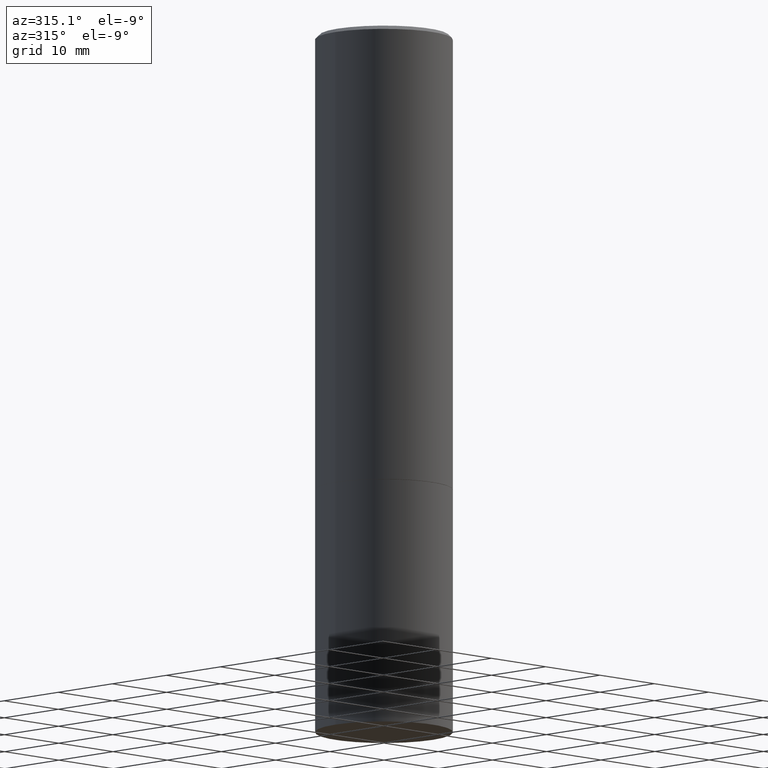
[diagram: clean part render]
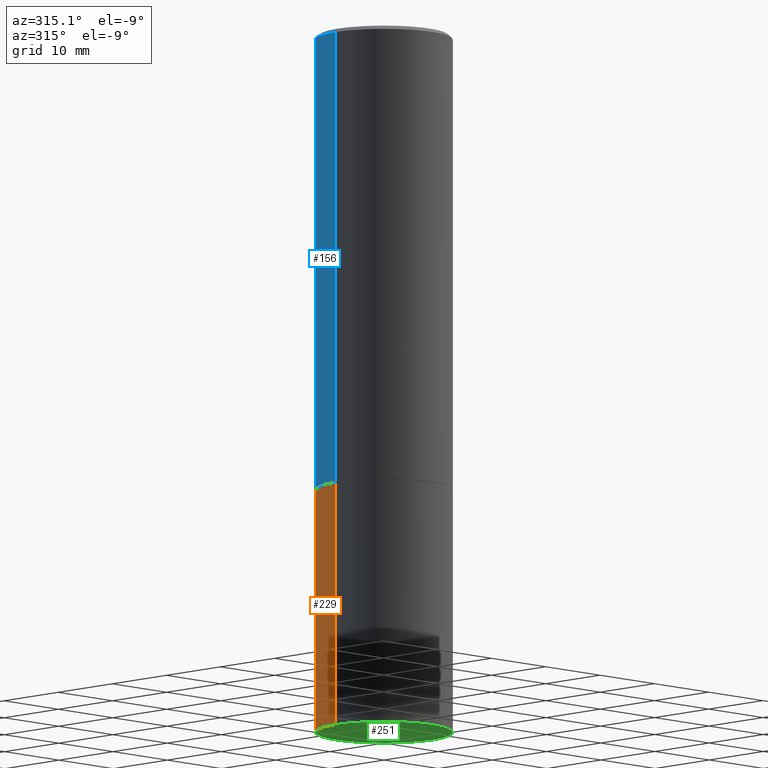
[diagram: same view with three faces highlighted in distinct colors, each labeled with its STEP entity id]
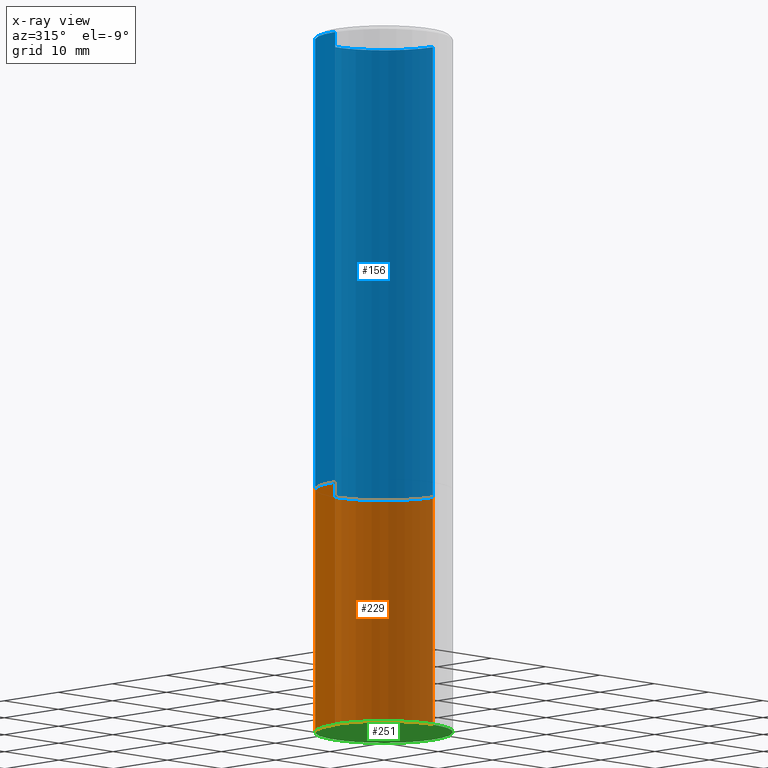
[diagram: x-ray of the same camera — body ghosted, the three highlighted faces saturated]
A machine part, auxiliary view with three faces highlighted in distinct colors.
The next image is the same camera in x-ray (body ghosted, the three faces saturated) — at least one of them is partly hidden behind the body in this view.
Their STEP definitions:

[orange] entity #229 — the highlighted cylindrical surface (partial cylindrical patch) has radius 9.0005 mm, axis along (-0, 0, 1).
#16 = CARTESIAN_POINT ( 'NONE',  ( -0.3543499999999999983, -7.929053129786659628E-15, -2.362199999999999633 ) ) ;
#21 = DIRECTION ( 'NONE',  ( -2.445468806185136597E-29, 3.491481338843145583E-15, 1.000000000000000000 ) ) ;
#22 = VECTOR ( 'NONE', #348, 39.37007874015748143 ) ;
#31 = ORIENTED_EDGE ( 'NONE', *, *, #314, .F. ) ;
#44 = AXIS2_PLACEMENT_3D ( 'NONE', #48, #331, #190 ) ;
#48 = CARTESIAN_POINT ( 'NONE',  ( 5.776686413970529753E-29, -8.247577218615278049E-15, -2.362199999999999633 ) ) ;
#50 = CARTESIAN_POINT ( 'NONE',  ( 0.000000000000000000, 0.000000000000000000, 0.000000000000000000 ) ) ;
#52 = DIRECTION ( 'NONE',  ( 1.000000000000000000, -6.982962677686265922E-15, 0.000000000000000000 ) ) ;
#55 = CIRCLE ( 'NONE', #44, 0.3543499999999999983 ) ;
#61 = DIRECTION ( 'NONE',  ( -2.445468806185136877E-29, 3.491481338843145188E-15, 1.000000000000000000 ) ) ;
#69 = VECTOR ( 'NONE', #61, 39.37007874015748143 ) ;
#70 = CYLINDRICAL_SURFACE ( 'NONE', #87, 0.3543499999999999983 ) ;
#72 = FACE_OUTER_BOUND ( 'NONE', #185, .T. ) ;
#86 = EDGE_CURVE ( 'NONE', #298, #259, #179, .T. ) ;
#87 = AXIS2_PLACEMENT_3D ( 'NONE', #50, #21, #249 ) ;
#109 = ORIENTED_EDGE ( 'NONE', *, *, #267, .F. ) ;
#114 = ORIENTED_EDGE ( 'NONE', *, *, #200, .T. ) ;
#179 = LINE ( 'NONE', #295, #22 ) ;
#185 = EDGE_LOOP ( 'NONE', ( #114, #341, #109, #31 ) ) ;
#190 = DIRECTION ( 'NONE',  ( 1.000000000000000000, -6.982962677686268288E-15, 0.000000000000000000 ) ) ;
#193 = CARTESIAN_POINT ( 'NONE',  ( 8.857488016002564476E-29, -1.264614540928987199E-14, -3.621999999999999886 ) ) ;
#200 = EDGE_CURVE ( 'NONE', #205, #298, #282, .T. ) ;
#202 = LINE ( 'NONE', #283, #69 ) ;
#205 = VERTEX_POINT ( 'NONE', #355 ) ;
#229 = ADVANCED_FACE ( 'NONE', ( #72 ), #70, .T. ) ;
#230 = CARTESIAN_POINT ( 'NONE',  ( -0.3543499999999999983, -7.929053129786659628E-15, -3.621999999999999886 ) ) ;
#242 = AXIS2_PLACEMENT_3D ( 'NONE', #193, #250, #52 ) ;
#249 = DIRECTION ( 'NONE',  ( 1.000000000000000000, -6.982962677686266711E-15, 4.876176775795935793E-29 ) ) ;
#250 = DIRECTION ( 'NONE',  ( -2.445468806185136597E-29, 3.491481338843145583E-15, 1.000000000000000000 ) ) ;
#259 = VERTEX_POINT ( 'NONE', #16 ) ;
#267 = EDGE_CURVE ( 'NONE', #292, #259, #55, .T. ) ;
#277 = CARTESIAN_POINT ( 'NONE',  ( 0.3543499999999999983, -1.072199004345340635E-14, -2.362199999999999633 ) ) ;
#282 = CIRCLE ( 'NONE', #242, 0.3543499999999999983 ) ;
#283 = CARTESIAN_POINT ( 'NONE',  ( 0.3543499999999999983, -2.474412824838128694E-15, 1.727873240503289749E-29 ) ) ;
#292 = VERTEX_POINT ( 'NONE', #277 ) ;
#295 = CARTESIAN_POINT ( 'NONE',  ( -0.3543499999999999983, 2.517808184165914997E-15, -1.743024649231826066E-29 ) ) ;
#298 = VERTEX_POINT ( 'NONE', #230 ) ;
#314 = EDGE_CURVE ( 'NONE', #205, #292, #202, .T. ) ;
#331 = DIRECTION ( 'NONE',  ( -2.445468806185136597E-29, 3.491481338843145583E-15, 1.000000000000000000 ) ) ;
#341 = ORIENTED_EDGE ( 'NONE', *, *, #86, .T. ) ;
#348 = DIRECTION ( 'NONE',  ( -2.445468806185136877E-29, 3.491481338843145188E-15, 1.000000000000000000 ) ) ;
#355 = CARTESIAN_POINT ( 'NONE',  ( 0.3543499999999999983, -1.512055823412800029E-14, -3.621999999999999886 ) ) ;

[blue] entity #156 — the highlighted cylindrical surface (partial cylindrical patch) has radius 9.0005 mm, axis along (-0, 0, 1).
#8 = ORIENTED_EDGE ( 'NONE', *, *, #339, .F. ) ;
#13 = DIRECTION ( 'NONE',  ( 1.000000000000000000, -6.982962677686265922E-15, 0.000000000000000000 ) ) ;
#17 = CIRCLE ( 'NONE', #269, 0.3543499999999997208 ) ;
#40 = CARTESIAN_POINT ( 'NONE',  ( -0.3543499999999997208, 2.404583198061263424E-15, -0.02000000000000008021 ) ) ;
#45 = CARTESIAN_POINT ( 'NONE',  ( 0.3543499999999998873, -2.474412824838127905E-15, 1.727873240503289188E-29 ) ) ;
#57 = EDGE_CURVE ( 'NONE', #112, #258, #98, .T. ) ;
#64 = VERTEX_POINT ( 'NONE', #40 ) ;
#68 = CARTESIAN_POINT ( 'NONE',  ( 5.774240945164344150E-29, -8.244085737276433464E-15, -2.361199999999999743 ) ) ;
#78 = EDGE_CURVE ( 'NONE', #112, #85, #151, .T. ) ;
#84 = DIRECTION ( 'NONE',  ( -2.445468806185136877E-29, 3.491481338843145188E-15, 1.000000000000000000 ) ) ;
#85 = VERTEX_POINT ( 'NONE', #313 ) ;
#98 = CIRCLE ( 'NONE', #144, 0.3543499999999999983 ) ;
#112 = VERTEX_POINT ( 'NONE', #121 ) ;
#121 = CARTESIAN_POINT ( 'NONE',  ( 0.3543499999999999983, -1.071849856211456176E-14, -2.361199999999999743 ) ) ;
#127 = FACE_OUTER_BOUND ( 'NONE', #316, .T. ) ;
#144 = AXIS2_PLACEMENT_3D ( 'NONE', #68, #153, #13 ) ;
#151 = LINE ( 'NONE', #45, #330 ) ;
#153 = DIRECTION ( 'NONE',  ( -2.445468806185136597E-29, 3.491481338843145583E-15, 1.000000000000000000 ) ) ;
#156 = ADVANCED_FACE ( 'NONE', ( #127 ), #309, .T. ) ;
#220 = CARTESIAN_POINT ( 'NONE',  ( -0.3543499999999999983, -1.639149497860731807E-15, -2.361199999999999743 ) ) ;
#222 = CARTESIAN_POINT ( 'NONE',  ( 0.000000000000000000, 0.000000000000000000, 0.000000000000000000 ) ) ;
#224 = DIRECTION ( 'NONE',  ( 1.000000000000000000, -6.982962677686266711E-15, 4.876176775795935232E-29 ) ) ;
#225 = VECTOR ( 'NONE', #340, 39.37007874015748143 ) ;
#228 = ORIENTED_EDGE ( 'NONE', *, *, #365, .T. ) ;
#256 = CARTESIAN_POINT ( 'NONE',  ( -0.3543499999999998873, 2.517808184165914208E-15, -1.743024649231825225E-29 ) ) ;
#258 = VERTEX_POINT ( 'NONE', #220 ) ;
#260 = CARTESIAN_POINT ( 'NONE',  ( 4.890937612370293302E-31, -6.982962677686318726E-17, -0.02000000000000008021 ) ) ;
#263 = ORIENTED_EDGE ( 'NONE', *, *, #78, .F. ) ;
#269 = AXIS2_PLACEMENT_3D ( 'NONE', #260, #337, #285 ) ;
#279 = DIRECTION ( 'NONE',  ( -2.445468806185136597E-29, 3.491481338843145583E-15, 1.000000000000000000 ) ) ;
#285 = DIRECTION ( 'NONE',  ( 1.000000000000000000, -6.982962677686266711E-15, 0.000000000000000000 ) ) ;
#288 = ORIENTED_EDGE ( 'NONE', *, *, #57, .T. ) ;
#309 = CYLINDRICAL_SURFACE ( 'NONE', #335, 0.3543499999999998873 ) ;
#313 = CARTESIAN_POINT ( 'NONE',  ( 0.3543499999999997208, -2.500847092287203718E-15, -0.02000000000000008021 ) ) ;
#316 = EDGE_LOOP ( 'NONE', ( #288, #228, #8, #263 ) ) ;
#330 = VECTOR ( 'NONE', #84, 39.37007874015748143 ) ;
#335 = AXIS2_PLACEMENT_3D ( 'NONE', #222, #279, #224 ) ;
#337 = DIRECTION ( 'NONE',  ( -2.445468806185136597E-29, 3.491481338843145583E-15, 1.000000000000000000 ) ) ;
#339 = EDGE_CURVE ( 'NONE', #85, #64, #17, .T. ) ;
#340 = DIRECTION ( 'NONE',  ( -2.445468806185136877E-29, 3.491481338843145188E-15, 1.000000000000000000 ) ) ;
#365 = EDGE_CURVE ( 'NONE', #258, #64, #366, .T. ) ;
#366 = LINE ( 'NONE', #256, #225 ) ;

[green] entity #251 — the highlighted planar face has unit normal (0, -0, -1).
#28 = AXIS2_PLACEMENT_3D ( 'NONE', #221, #281, #333 ) ;
#43 = EDGE_LOOP ( 'NONE', ( #77, #266 ) ) ;
#52 = DIRECTION ( 'NONE',  ( 1.000000000000000000, -6.982962677686265922E-15, 0.000000000000000000 ) ) ;
#77 = ORIENTED_EDGE ( 'NONE', *, *, #200, .F. ) ;
#94 = DIRECTION ( 'NONE',  ( 2.438088387897960049E-29, -3.491481338843145188E-15, -1.000000000000000000 ) ) ;
#123 = PLANE ( 'NONE',  #303 ) ;
#129 = CARTESIAN_POINT ( 'NONE',  ( 2.474412824838217047E-15, 0.3543499999999873973, -3.622000000000000774 ) ) ;
#150 = CIRCLE ( 'NONE', #28, 0.3543499999999999983 ) ;
#193 = CARTESIAN_POINT ( 'NONE',  ( 8.857488016002564476E-29, -1.264614540928987199E-14, -3.621999999999999886 ) ) ;
#200 = EDGE_CURVE ( 'NONE', #205, #298, #282, .T. ) ;
#205 = VERTEX_POINT ( 'NONE', #355 ) ;
#218 = EDGE_CURVE ( 'NONE', #298, #205, #150, .T. ) ;
#221 = CARTESIAN_POINT ( 'NONE',  ( 8.857488016002564476E-29, -1.264614540928987199E-14, -3.621999999999999886 ) ) ;
#230 = CARTESIAN_POINT ( 'NONE',  ( -0.3543499999999999983, -7.929053129786659628E-15, -3.621999999999999886 ) ) ;
#242 = AXIS2_PLACEMENT_3D ( 'NONE', #193, #250, #52 ) ;
#250 = DIRECTION ( 'NONE',  ( -2.445468806185136597E-29, 3.491481338843145583E-15, 1.000000000000000000 ) ) ;
#251 = ADVANCED_FACE ( 'NONE', ( #336 ), #123, .T. ) ;
#266 = ORIENTED_EDGE ( 'NONE', *, *, #218, .F. ) ;
#281 = DIRECTION ( 'NONE',  ( -2.445468806185136597E-29, 3.491481338843145583E-15, 1.000000000000000000 ) ) ;
#282 = CIRCLE ( 'NONE', #242, 0.3543499999999999983 ) ;
#298 = VERTEX_POINT ( 'NONE', #230 ) ;
#303 = AXIS2_PLACEMENT_3D ( 'NONE', #129, #94, #307 ) ;
#307 = DIRECTION ( 'NONE',  ( -1.000000000000000000, 6.982962677686265922E-15, -4.876176775795935793E-29 ) ) ;
#333 = DIRECTION ( 'NONE',  ( 1.000000000000000000, -6.982962677686265922E-15, 0.000000000000000000 ) ) ;
#336 = FACE_OUTER_BOUND ( 'NONE', #43, .T. ) ;
#355 = CARTESIAN_POINT ( 'NONE',  ( 0.3543499999999999983, -1.512055823412800029E-14, -3.621999999999999886 ) ) ;